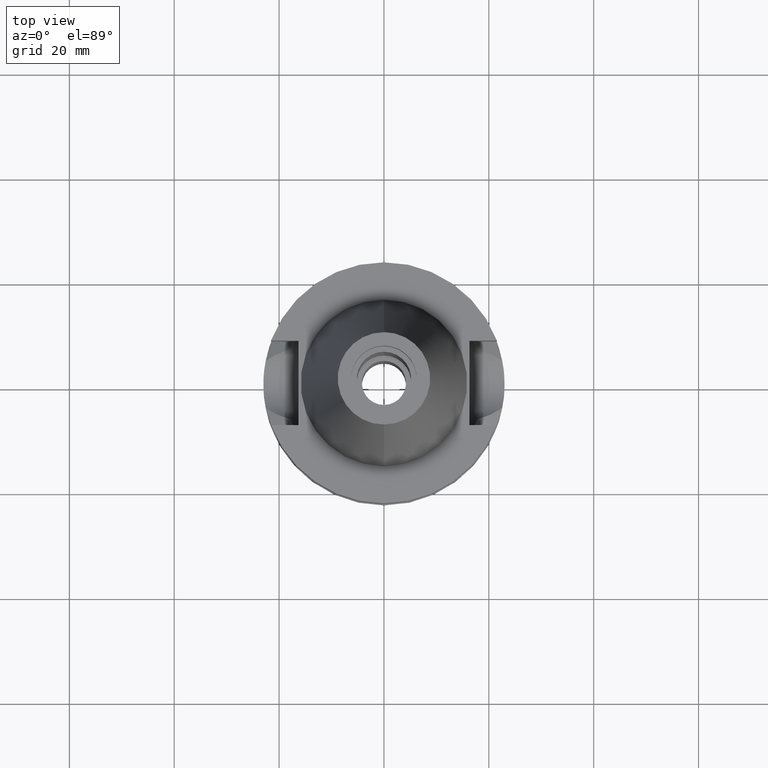
[diagram: clean part render]
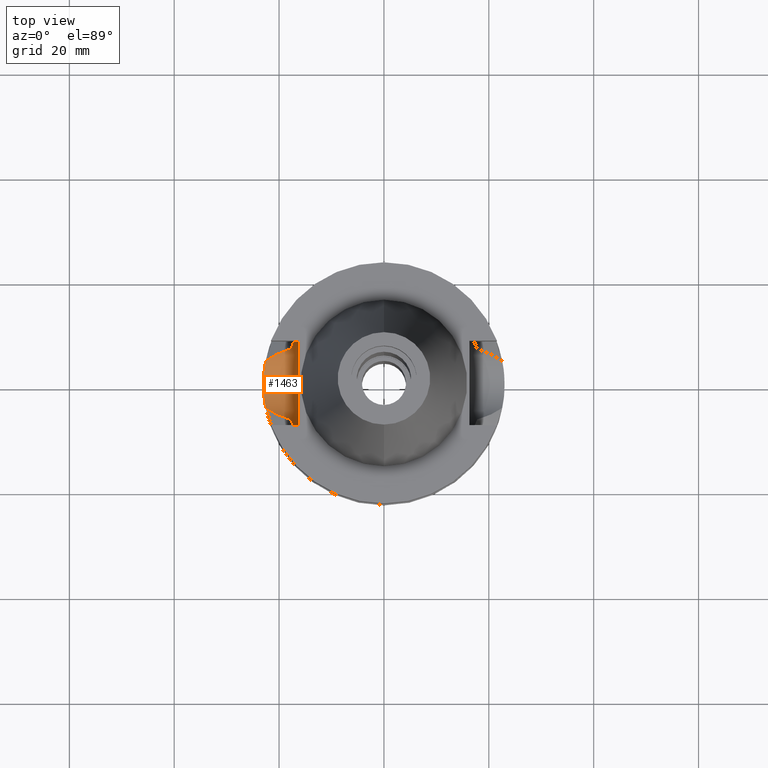
[diagram: same view with one face highlighted and labeled with its STEP entity id]
A machine part, top view. The second image highlights one B-rep face of the part: STEP entity #1463.
In plain terms, the highlighted cylindrical surface (partial cylindrical patch) has radius 8.05 mm, axis along (-1, 0, 0).
Its self-contained STEP definition (entity closure, byte-faithful):
#30 = CARTESIAN_POINT ( 'NONE',  ( -17.23531135277999837, 7.996501749842999551, -11.87660739337000138 ) ) ;
#68 = CARTESIAN_POINT ( 'NONE',  ( -17.32020187218237695, 7.811452264617057217, -12.90108126113137210 ) ) ;
#115 = CARTESIAN_POINT ( 'NONE',  ( -22.72816253024388544, -3.526890145525057640, -18.18694444665111476 ) ) ;
#120 = CARTESIAN_POINT ( 'NONE',  ( -18.30334760937030225, -8.049999956192346318, -11.30291655530395722 ) ) ;
#143 = CARTESIAN_POINT ( 'NONE',  ( -22.55786346208000026, 4.488072640470000430, -17.63279163029000074 ) ) ;
#178 = VERTEX_POINT ( 'NONE', #1639 ) ;
#182 = ORIENTED_EDGE ( 'NONE', *, *, #1674, .T. ) ;
#199 = CARTESIAN_POINT ( 'NONE',  ( -21.37344794594736541, 5.343258989435576645, -17.05846002343515622 ) ) ;
#215 = VERTEX_POINT ( 'NONE', #1671 ) ;
#217 = CARTESIAN_POINT ( 'NONE',  ( -18.96738966519000158, -8.049994318072998922, -10.95000099924999937 ) ) ;
#242 = CARTESIAN_POINT ( 'NONE',  ( -17.75736593456000278, 6.758398853743999624, -15.32339055352999857 ) ) ;
#265 = EDGE_CURVE ( 'NONE', #2528, #178, #1813, .T. ) ;
#269 = CARTESIAN_POINT ( 'NONE',  ( -17.36640948863368195, 7.707982828518821883, -13.27282317184121219 ) ) ;
#274 = B_SPLINE_CURVE_WITH_KNOTS ( 'NONE', 3,
 ( #1212, #1695, #2169, #30 ),
 .UNSPECIFIED., .F., .F.,
 ( 4, 4 ),
 ( 0.0000000000000000000, 1.000000000000000000 ),
 .UNSPECIFIED. ) ;
#318 = EDGE_CURVE ( 'NONE', #642, #2528, #274, .T. ) ;
#319 = VERTEX_POINT ( 'NONE', #1457 ) ;
#321 = CARTESIAN_POINT ( 'NONE',  ( -22.55786346208000026, -4.488072640470000430, -17.63279163029000074 ) ) ;
#333 = CARTESIAN_POINT ( 'NONE',  ( -17.53683850617920470, -7.312769253757402943, -14.31902481035358221 ) ) ;
#342 = CARTESIAN_POINT ( 'NONE',  ( -17.72598979704696376, -8.027133611820556069, -11.61218201620528490 ) ) ;
#349 = B_SPLINE_CURVE_WITH_KNOTS ( 'NONE', 3,
 ( #416, #1581, #199, #2759 ),
 .UNSPECIFIED., .F., .F.,
 ( 4, 4 ),
 ( 0.0000000000000000000, 1.000000000000000000 ),
 .UNSPECIFIED. ) ;
#364 = EDGE_CURVE ( 'NONE', #1080, #215, #2849, .T. ) ;
#369 = CARTESIAN_POINT ( 'NONE',  ( -17.26628505277002290, -7.929743581435687361, -12.45264543972447768 ) ) ;
#378 = CARTESIAN_POINT ( 'NONE',  ( -22.68649346772455644, 3.802561549271607166, -18.05675000991401546 ) ) ;
#384 = VERTEX_POINT ( 'NONE', #2707 ) ;
#387 = EDGE_LOOP ( 'NONE', ( #1751, #182, #2738, #1068, #568, #763, #2473, #2817, #1454, #594 ) ) ;
#400 = LINE ( 'NONE', #1621, #1839 ) ;
#405 = DIRECTION ( 'NONE',  ( -1.000000000000000000, 0.0000000000000000000, 0.0000000000000000000 ) ) ;
#416 = CARTESIAN_POINT ( 'NONE',  ( -17.75736593456000278, 6.758398853743999624, -15.32339055352999857 ) ) ;
#441 = B_SPLINE_CURVE_WITH_KNOTS ( 'NONE', 3,
 ( #926, #2635, #1535, #333, #1236, #1073, #2980, #860, #623, #1549, #1300, #2022, #604, #369, #1103 ),
 .UNSPECIFIED., .F., .F.,
 ( 4, 2, 2, 1, 1, 1, 2, 2, 4 ),
 ( 0.0000000000000000000, 0.2500000000000050515, 0.3750000000000084377, 0.4375000000000100475, 0.4687500000000112688, 0.4843750000000111022, 0.4921875000000109357, 0.5000000000000107692, 1.000000000000000000 ),
 .UNSPECIFIED. ) ;
#472 = CARTESIAN_POINT ( 'NONE',  ( -17.50086807637586261, 7.400179108321550459, -14.16641331504227708 ) ) ;
#514 = CARTESIAN_POINT ( 'NONE',  ( -17.41740973188570862, 7.591861673427974466, -13.62698225821707432 ) ) ;
#544 = CARTESIAN_POINT ( 'NONE',  ( -22.98981225231696257, 0.7866762887154062911, -18.97140373448186423 ) ) ;
#568 = ORIENTED_EDGE ( 'NONE', *, *, #729, .F. ) ;
#594 = ORIENTED_EDGE ( 'NONE', *, *, #2564, .T. ) ;
#604 = CARTESIAN_POINT ( 'NONE',  ( -17.32791110612699725, -7.797407457944076192, -13.04850003609909770 ) ) ;
#612 = CARTESIAN_POINT ( 'NONE',  ( -22.68451934922242685, -3.797473561512529017, -18.04874076801406702 ) ) ;
#623 = CARTESIAN_POINT ( 'NONE',  ( -17.42911851124947731, -7.564954524478351594, -13.70217975922368936 ) ) ;
#638 = DIRECTION ( 'NONE',  ( 0.9999999999998816502, -4.791475818336908141E-07, -8.421485003896849375E-08 ) ) ;
#642 = VERTEX_POINT ( 'NONE', #2103 ) ;
#729 = EDGE_CURVE ( 'NONE', #642, #2545, #400, .T. ) ;
#759 = EDGE_CURVE ( 'NONE', #178, #215, #349, .T. ) ;
#763 = ORIENTED_EDGE ( 'NONE', *, *, #318, .T. ) ;
#774 = CARTESIAN_POINT ( 'NONE',  ( -17.40050758142243836, 7.630565565649208182, -13.51508960572988016 ) ) ;
#784 = CARTESIAN_POINT ( 'NONE',  ( -16.29999999999999716, 8.050000000000000711, -10.94999999999999929 ) ) ;
#805 = CARTESIAN_POINT ( 'NONE',  ( -22.99998858080468622, 0.3954356465662036135, -18.99996428057313125 ) ) ;
#860 = CARTESIAN_POINT ( 'NONE',  ( -17.43825996257356792, -7.543902337116145773, -13.75966030978032606 ) ) ;
#874 = EDGE_CURVE ( 'NONE', #319, #2545, #1043, .T. ) ;
#926 = CARTESIAN_POINT ( 'NONE',  ( -17.75736593456000278, -6.758398853743999624, -15.32339055352999857 ) ) ;
#970 = B_SPLINE_CURVE_WITH_KNOTS ( 'NONE', 3,
 ( #1296, #342, #120, #2251 ),
 .UNSPECIFIED., .F., .F.,
 ( 4, 4 ),
 ( 0.0000000000000000000, 1.000000000000000000 ),
 .UNSPECIFIED. ) ;
#1012 = CARTESIAN_POINT ( 'NONE',  ( -16.29999999999999716, 0.0000000000000000000, -10.94999999999999929 ) ) ;
#1034 = CARTESIAN_POINT ( 'NONE',  ( -22.63949002702634417, -4.063148859127735157, -17.90449342733997895 ) ) ;
#1043 = CIRCLE ( 'NONE', #2875, 8.050000000000000711 ) ;
#1067 = CARTESIAN_POINT ( 'NONE',  ( -22.75550207064290476, 3.345990776330093563, -18.27236131437456024 ) ) ;
#1068 = ORIENTED_EDGE ( 'NONE', *, *, #874, .T. ) ;
#1073 = CARTESIAN_POINT ( 'NONE',  ( -17.47454244283665048, -7.459747681737654901, -13.97656327324755487 ) ) ;
#1078 = CARTESIAN_POINT ( 'NONE',  ( -22.86328789180348764, -2.511235453338648949, -18.60078652670160437 ) ) ;
#1080 = VERTEX_POINT ( 'NONE', #1163 ) ;
#1103 = CARTESIAN_POINT ( 'NONE',  ( -17.23531622822000386, -7.996491147958001200, -11.87660607717000083 ) ) ;
#1163 = CARTESIAN_POINT ( 'NONE',  ( -22.55786346208000026, -4.488072640470000430, -17.63279163029000074 ) ) ;
#1212 = CARTESIAN_POINT ( 'NONE',  ( -18.96736186712000105, 8.050001278060001653, -10.94999977536999936 ) ) ;
#1232 = CARTESIAN_POINT ( 'NONE',  ( -17.75736593456000278, -6.758398853743999624, -15.32339055352999857 ) ) ;
#1234 = DIRECTION ( 'NONE',  ( 1.000000000000000000, 0.0000000000000000000, 0.0000000000000000000 ) ) ;
#1236 = CARTESIAN_POINT ( 'NONE',  ( -17.51072787952266552, -7.374839633740275069, -14.18046796381867480 ) ) ;
#1250 = CARTESIAN_POINT ( 'NONE',  ( -21.37344794595614061, -5.343258989439321205, -17.05846002343264090 ) ) ;
#1293 = B_SPLINE_CURVE_WITH_KNOTS ( 'NONE', 3,
 ( #2901, #1250, #2236, #1232 ),
 .UNSPECIFIED., .F., .F.,
 ( 4, 4 ),
 ( 0.0000000000000000000, 1.000000000000000000 ),
 .UNSPECIFIED. ) ;
#1296 = CARTESIAN_POINT ( 'NONE',  ( -17.23531622822000386, -7.996491147958001200, -11.87660607717000083 ) ) ;
#1300 = CARTESIAN_POINT ( 'NONE',  ( -17.42272085252563230, -7.579664040946562764, -13.66132223665699996 ) ) ;
#1308 = CARTESIAN_POINT ( 'NONE',  ( -22.59123113612795208, -4.320360685805279211, -17.74542471491123763 ) ) ;
#1428 = CARTESIAN_POINT ( 'NONE',  ( -17.61322740995597158, 7.137115851942632538, -14.73814199290237958 ) ) ;
#1454 = ORIENTED_EDGE ( 'NONE', *, *, #364, .F. ) ;
#1457 = CARTESIAN_POINT ( 'NONE',  ( -16.29999999999999716, -8.050000000000000711, -10.94999999999999929 ) ) ;
#1463 = ADVANCED_FACE ( 'NONE', ( #1593 ), #2491, .F. ) ;
#1507 = CARTESIAN_POINT ( 'NONE',  ( -22.96012911950264623, 1.367498651103296714, -18.88577563418335714 ) ) ;
#1523 = CARTESIAN_POINT ( 'NONE',  ( -22.76851979598738041, 3.256232003270503217, -18.31270581804065500 ) ) ;
#1535 = CARTESIAN_POINT ( 'NONE',  ( -17.62113139274647722, -7.108367418537760329, -14.74095000876842043 ) ) ;
#1549 = CARTESIAN_POINT ( 'NONE',  ( -17.42527060194236199, -7.573803216158514928, -13.67765102011162881 ) ) ;
#1555 = CARTESIAN_POINT ( 'NONE',  ( -22.79454504916354196, -3.073075940583537058, -18.39302873915096015 ) ) ;
#1581 = CARTESIAN_POINT ( 'NONE',  ( -19.77328210344069959, 6.137069160771546628, -16.28355951932152479 ) ) ;
#1593 = FACE_OUTER_BOUND ( 'NONE', #387, .T. ) ;
#1621 = CARTESIAN_POINT ( 'NONE',  ( -18.96736186712000105, 8.050001278060001653, -10.94999977536999936 ) ) ;
#1639 = CARTESIAN_POINT ( 'NONE',  ( -17.75736593456000278, 6.758398853743999624, -15.32339055352999857 ) ) ;
#1671 = CARTESIAN_POINT ( 'NONE',  ( -22.55786346208000026, 4.488072640470000430, -17.63279163029000074 ) ) ;
#1674 = EDGE_CURVE ( 'NONE', #2560, #2438, #970, .T. ) ;
#1695 = CARTESIAN_POINT ( 'NONE',  ( -18.30417674803561567, 8.050000009835159176, -11.30245975391281377 ) ) ;
#1747 = CARTESIAN_POINT ( 'NONE',  ( -22.91857225751134308, 1.943179638443998325, -18.76449146625016695 ) ) ;
#1751 = ORIENTED_EDGE ( 'NONE', *, *, #2954, .T. ) ;
#1783 = CARTESIAN_POINT ( 'NONE',  ( -23.00002280957227896, -0.7888770690290619614, -19.00007135652368007 ) ) ;
#1813 = B_SPLINE_CURVE_WITH_KNOTS ( 'NONE', 3,
 ( #2179, #2141, #2431, #68, #2400, #269, #2415, #774, #1944, #2893, #514, #2614, #472, #1428, #242 ),
 .UNSPECIFIED., .F., .F.,
 ( 4, 2, 2, 1, 1, 1, 2, 2, 4 ),
 ( 0.0000000000000000000, 0.2500000000000178746, 0.3750000000000268119, 0.4375000000000318634, 0.4687500000000335287, 0.4843750000000343059, 0.4921875000000345834, 0.5000000000000348610, 1.000000000000000000 ),
 .UNSPECIFIED. ) ;
#1839 = VECTOR ( 'NONE', #638, 1000.000000000000114 ) ;
#1907 = CARTESIAN_POINT ( 'NONE',  ( -16.29999999999999716, -8.050000000000000711, -10.94999999999999929 ) ) ;
#1944 = CARTESIAN_POINT ( 'NONE',  ( -17.41029288300946476, 7.608179589639397555, -13.58035844439397977 ) ) ;
#1955 = CARTESIAN_POINT ( 'NONE',  ( -17.23531622822000386, -7.996491147958001200, -11.87660607717000083 ) ) ;
#1957 = CARTESIAN_POINT ( 'NONE',  ( -17.23531135277999837, 7.996501749842999551, -11.87660739337000138 ) ) ;
#1969 = DIRECTION ( 'NONE',  ( 0.0000000000000000000, 0.0000000000000000000, -1.000000000000000000 ) ) ;
#1979 = CARTESIAN_POINT ( 'NONE',  ( -22.90177420232112837, 2.132038374916274570, -18.71504288253900938 ) ) ;
#1988 = DIRECTION ( 'NONE',  ( 0.0000000000000000000, -1.000000000000000000, 0.0000000000000000000 ) ) ;
#2022 = CARTESIAN_POINT ( 'NONE',  ( -17.42163631457474438, -7.582155995863029574, -13.65434988445094966 ) ) ;
#2029 = CARTESIAN_POINT ( 'NONE',  ( -22.95937176674217639, -1.564300382281923696, -18.88601547120310187 ) ) ;
#2103 = CARTESIAN_POINT ( 'NONE',  ( -18.96736186712000105, 8.050001278060001653, -10.94999977536999936 ) ) ;
#2141 = CARTESIAN_POINT ( 'NONE',  ( -17.25079912548386929, 7.963111191686685686, -12.16468723198503454 ) ) ;
#2144 = EDGE_CURVE ( 'NONE', #319, #2438, #2789, .T. ) ;
#2169 = CARTESIAN_POINT ( 'NONE',  ( -17.72682657658894456, 8.027186145136614215, -11.61172868551800086 ) ) ;
#2179 = CARTESIAN_POINT ( 'NONE',  ( -17.23531135277999837, 7.996501749842999551, -11.87660739337000138 ) ) ;
#2236 = CARTESIAN_POINT ( 'NONE',  ( -19.77328210344947479, -6.137069160773994447, -16.28355951931774115 ) ) ;
#2251 = CARTESIAN_POINT ( 'NONE',  ( -18.96738966519000158, -8.049994318072998922, -10.95000099924999937 ) ) ;
#2262 = CARTESIAN_POINT ( 'NONE',  ( -22.62456219432607085, 4.152832769010888825, -17.85793420218319838 ) ) ;
#2277 = CARTESIAN_POINT ( 'NONE',  ( -22.71375877824240419, -3.618478370731130767, -18.14161202362907943 ) ) ;
#2298 = VECTOR ( 'NONE', #2361, 1000.000000000000114 ) ;
#2361 = DIRECTION ( 'NONE',  ( -0.9999999999976610932, 2.130144934754915036E-06, -3.746155605553855172E-07 ) ) ;
#2400 = CARTESIAN_POINT ( 'NONE',  ( -17.33753429445269134, 7.772924035862942560, -13.04956638909991185 ) ) ;
#2415 = CARTESIAN_POINT ( 'NONE',  ( -17.38156622591805700, 7.673725377157971650, -13.38458314269293226 ) ) ;
#2431 = CARTESIAN_POINT ( 'NONE',  ( -17.27395772692245046, 7.913379800912671236, -12.45762674632126199 ) ) ;
#2438 = VERTEX_POINT ( 'NONE', #217 ) ;
#2467 = CARTESIAN_POINT ( 'NONE',  ( -22.94783187432356186, 1.560100540930364765, -18.85010172055691768 ) ) ;
#2473 = ORIENTED_EDGE ( 'NONE', *, *, #265, .T. ) ;
#2491 = CYLINDRICAL_SURFACE ( 'NONE', #2730, 8.050000000000000711 ) ;
#2495 = CARTESIAN_POINT ( 'NONE',  ( -22.76906520255452904, -3.256220846465522012, -18.31473957267541763 ) ) ;
#2513 = CARTESIAN_POINT ( 'NONE',  ( -22.83068949000664460, 2.796555654198526586, -18.50323471206888470 ) ) ;
#2528 = VERTEX_POINT ( 'NONE', #1957 ) ;
#2542 = CARTESIAN_POINT ( 'NONE',  ( -23.00000000000000000, 0.0000000000000000000, -10.94999999999999929 ) ) ;
#2545 = VERTEX_POINT ( 'NONE', #784 ) ;
#2560 = VERTEX_POINT ( 'NONE', #1955 ) ;
#2564 = EDGE_CURVE ( 'NONE', #1080, #384, #1293, .T. ) ;
#2614 = CARTESIAN_POINT ( 'NONE',  ( -17.41902886909224080, 7.588145056434206559, -13.63749496353733370 ) ) ;
#2635 = CARTESIAN_POINT ( 'NONE',  ( -17.68527465925482289, -6.947815190946712960, -15.03067689337112256 ) ) ;
#2690 = CARTESIAN_POINT ( 'NONE',  ( -22.79395160757535166, 3.073159721020873203, -18.39099029192247770 ) ) ;
#2707 = CARTESIAN_POINT ( 'NONE',  ( -17.75736593456000278, -6.758398853743999624, -15.32339055352999857 ) ) ;
#2730 = AXIS2_PLACEMENT_3D ( 'NONE', #2542, #405, #1969 ) ;
#2738 = ORIENTED_EDGE ( 'NONE', *, *, #2144, .F. ) ;
#2759 = CARTESIAN_POINT ( 'NONE',  ( -22.55786346208000026, 4.488072640470000430, -17.63279163029000074 ) ) ;
#2789 = LINE ( 'NONE', #1907, #2298 ) ;
#2817 = ORIENTED_EDGE ( 'NONE', *, *, #759, .T. ) ;
#2849 = B_SPLINE_CURVE_WITH_KNOTS ( 'NONE', 3,
 ( #321, #1308, #1034, #612, #2277, #115, #2495, #1555, #2971, #1078, #2029, #1783, #805, #544, #1507, #2467, #1747, #1979, #2924, #2513, #2690, #1523, #1067, #378, #2262, #143 ),
 .UNSPECIFIED., .F., .F.,
 ( 4, 1, 2, 2, 2, 2, 2, 2, 2, 2, 1, 2, 2, 4 ),
 ( 0.0000000000000000000, 0.06249999999999984734, 0.09374999999999969469, 0.1249999999999995282, 0.1874999999999998057, 0.2500000000000001110, 0.5000000000000003331, 0.6250000000000004441, 0.6875000000000006661, 0.7500000000000007772, 0.8125000000000009992, 0.8437500000000007772, 0.8750000000000006661, 1.000000000000000000 ),
 .UNSPECIFIED. ) ;
#2875 = AXIS2_PLACEMENT_3D ( 'NONE', #1012, #1234, #1988 ) ;
#2893 = CARTESIAN_POINT ( 'NONE',  ( -17.41455400308278456, 7.598412036671288838, -13.60833259774664405 ) ) ;
#2901 = CARTESIAN_POINT ( 'NONE',  ( -22.55786346208000026, -4.488072640470000430, -17.63279163029000074 ) ) ;
#2924 = CARTESIAN_POINT ( 'NONE',  ( -22.86299765832499986, 2.513998273993405252, -18.59993226018619339 ) ) ;
#2954 = EDGE_CURVE ( 'NONE', #384, #2560, #441, .T. ) ;
#2971 = CARTESIAN_POINT ( 'NONE',  ( -22.84156871283115109, -2.701447477178199996, -18.53579190368741436 ) ) ;
#2980 = CARTESIAN_POINT ( 'NONE',  ( -17.45719485031835205, -7.500152504345086513, -13.87559139681874676 ) ) ;